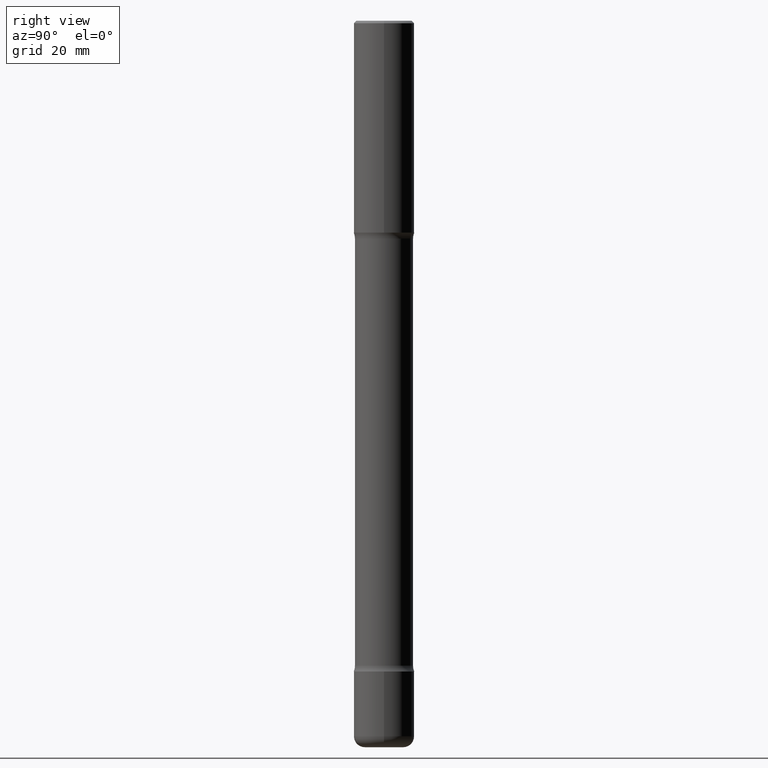
[diagram: clean part render]
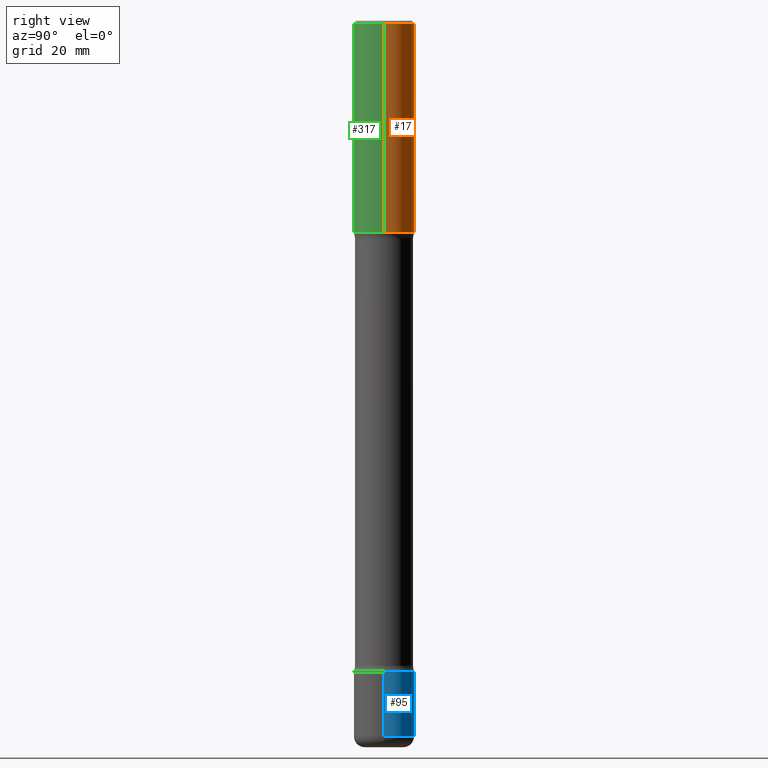
[diagram: same view with three faces highlighted in distinct colors, each labeled with its STEP entity id]
A machine part, right view with three faces highlighted in distinct colors.
Their STEP definitions:

[orange] entity #17 — the highlighted cylindrical surface (edge-blend (fillet) strip) has radius 6.35 mm, axis along (-0, 0, 1).
#17 = ADVANCED_FACE ( 'NONE', ( #40 ), #514, .T. ) ;
#23 = DIRECTION ( 'NONE',  ( -2.445468806185136597E-29, 3.491481338843145583E-15, 1.000000000000000000 ) ) ;
#33 = CARTESIAN_POINT ( 'NONE',  ( 4.279570410823991847E-29, -6.110092342975509404E-15, -1.750000000000001332 ) ) ;
#40 = FACE_OUTER_BOUND ( 'NONE', #321, .T. ) ;
#44 = CIRCLE ( 'NONE', #362, 0.2500000000000001110 ) ;
#68 = DIRECTION ( 'NONE',  ( -2.445468806185136597E-29, 3.491481338843145583E-15, 1.000000000000000000 ) ) ;
#77 = EDGE_CURVE ( 'NONE', #219, #112, #521, .T. ) ;
#88 = DIRECTION ( 'NONE',  ( -2.445468806185136877E-29, 3.491481338843145188E-15, 1.000000000000000000 ) ) ;
#91 = VECTOR ( 'NONE', #88, 39.37007874015748143 ) ;
#92 = DIRECTION ( 'NONE',  ( 1.000000000000000000, -6.982962677686267499E-15, 4.876176775795936353E-29 ) ) ;
#93 = ORIENTED_EDGE ( 'NONE', *, *, #494, .F. ) ;
#98 = CARTESIAN_POINT ( 'NONE',  ( 0.000000000000000000, 0.000000000000000000, 0.000000000000000000 ) ) ;
#102 = AXIS2_PLACEMENT_3D ( 'NONE', #98, #196, #92 ) ;
#112 = VERTEX_POINT ( 'NONE', #215 ) ;
#131 = LINE ( 'NONE', #473, #91 ) ;
#152 = DIRECTION ( 'NONE',  ( 1.000000000000000000, -6.982962677686267499E-15, 0.000000000000000000 ) ) ;
#196 = DIRECTION ( 'NONE',  ( -2.445468806185136597E-29, 3.491481338843145583E-15, 1.000000000000000000 ) ) ;
#203 = ORIENTED_EDGE ( 'NONE', *, *, #325, .T. ) ;
#215 = CARTESIAN_POINT ( 'NONE',  ( -0.2500000000000001110, 1.675911042644704563E-15, -0.02000000000000005246 ) ) ;
#219 = VERTEX_POINT ( 'NONE', #492 ) ;
#261 = ORIENTED_EDGE ( 'NONE', *, *, #77, .T. ) ;
#290 = VERTEX_POINT ( 'NONE', #448 ) ;
#291 = EDGE_CURVE ( 'NONE', #371, #112, #44, .T. ) ;
#314 = CARTESIAN_POINT ( 'NONE',  ( 0.2500000000000001110, -1.784954126219746583E-15, -0.02000000000000005246 ) ) ;
#321 = EDGE_LOOP ( 'NONE', ( #203, #261, #368, #93 ) ) ;
#325 = EDGE_CURVE ( 'NONE', #290, #219, #396, .T. ) ;
#362 = AXIS2_PLACEMENT_3D ( 'NONE', #533, #23, #152 ) ;
#368 = ORIENTED_EDGE ( 'NONE', *, *, #291, .F. ) ;
#371 = VERTEX_POINT ( 'NONE', #314 ) ;
#395 = DIRECTION ( 'NONE',  ( -2.445468806185136877E-29, 3.491481338843145188E-15, 1.000000000000000000 ) ) ;
#396 = CIRCLE ( 'NONE', #415, 0.2500000000000003331 ) ;
#414 = VECTOR ( 'NONE', #395, 39.37007874015748143 ) ;
#415 = AXIS2_PLACEMENT_3D ( 'NONE', #33, #68, #456 ) ;
#440 = CARTESIAN_POINT ( 'NONE',  ( -0.2500000000000002220, 1.776356839400252042E-15, -1.229733772563727566E-29 ) ) ;
#448 = CARTESIAN_POINT ( 'NONE',  ( 0.2500000000000003331, -7.855833012397078448E-15, -1.750000000000001332 ) ) ;
#456 = DIRECTION ( 'NONE',  ( 1.000000000000000000, -6.982962677686269077E-15, 0.000000000000000000 ) ) ;
#473 = CARTESIAN_POINT ( 'NONE',  ( 0.2500000000000002220, -1.745740669421568453E-15, 1.219044193948985209E-29 ) ) ;
#492 = CARTESIAN_POINT ( 'NONE',  ( -0.2500000000000003331, -1.313604145475932337E-15, -1.750000000000001332 ) ) ;
#494 = EDGE_CURVE ( 'NONE', #290, #371, #131, .T. ) ;
#514 = CYLINDRICAL_SURFACE ( 'NONE', #102, 0.2500000000000002220 ) ;
#521 = LINE ( 'NONE', #440, #414 ) ;
#533 = CARTESIAN_POINT ( 'NONE',  ( 4.890937612370285420E-31, -6.982962677686308865E-17, -0.02000000000000005246 ) ) ;

[blue] entity #95 — the highlighted cylindrical surface (edge-blend (fillet) strip) has radius 6.35 mm, axis along (-0, 0, 1).
#18 = CIRCLE ( 'NONE', #191, 0.2500000000000005551 ) ;
#31 = VERTEX_POINT ( 'NONE', #221 ) ;
#59 = DIRECTION ( 'NONE',  ( 1.000000000000000000, -6.982962677686267499E-15, 4.876176775795935793E-29 ) ) ;
#81 = CIRCLE ( 'NONE', #430, 0.2500000000000002776 ) ;
#86 = VERTEX_POINT ( 'NONE', #528 ) ;
#95 = ADVANCED_FACE ( 'NONE', ( #354 ), #185, .T. ) ;
#120 = EDGE_CURVE ( 'NONE', #236, #86, #18, .T. ) ;
#143 = DIRECTION ( 'NONE',  ( -2.445468806185136597E-29, 3.491481338843145583E-15, 1.000000000000000000 ) ) ;
#158 = VERTEX_POINT ( 'NONE', #392 ) ;
#161 = CARTESIAN_POINT ( 'NONE',  ( 1.314439483324511369E-28, -1.876671219628191278E-14, -5.375000000000001776 ) ) ;
#167 = DIRECTION ( 'NONE',  ( 1.000000000000000000, -6.982962677686262766E-15, 0.000000000000000000 ) ) ;
#185 = CYLINDRICAL_SURFACE ( 'NONE', #329, 0.2500000000000003886 ) ;
#191 = AXIS2_PLACEMENT_3D ( 'NONE', #334, #259, #167 ) ;
#218 = EDGE_CURVE ( 'NONE', #236, #31, #365, .T. ) ;
#221 = CARTESIAN_POINT ( 'NONE',  ( 0.2500000000000002776, -2.051245286570348262E-14, -5.375000000000001776 ) ) ;
#231 = ORIENTED_EDGE ( 'NONE', *, *, #120, .T. ) ;
#236 = VERTEX_POINT ( 'NONE', #281 ) ;
#257 = EDGE_CURVE ( 'NONE', #31, #158, #81, .T. ) ;
#259 = DIRECTION ( 'NONE',  ( -2.445468806185136597E-29, 3.491481338843145583E-15, 1.000000000000000000 ) ) ;
#281 = CARTESIAN_POINT ( 'NONE',  ( 0.2500000000000006661, -2.238039538198456243E-14, -5.910000000000001030 ) ) ;
#299 = EDGE_CURVE ( 'NONE', #86, #158, #326, .T. ) ;
#324 = DIRECTION ( 'NONE',  ( 1.000000000000000000, -6.982962677686270655E-15, 0.000000000000000000 ) ) ;
#326 = LINE ( 'NONE', #404, #504 ) ;
#329 = AXIS2_PLACEMENT_3D ( 'NONE', #357, #143, #59 ) ;
#334 = CARTESIAN_POINT ( 'NONE',  ( 1.445272064455416016E-28, -2.063465471256299260E-14, -5.910000000000001030 ) ) ;
#350 = VECTOR ( 'NONE', #376, 39.37007874015748143 ) ;
#354 = FACE_OUTER_BOUND ( 'NONE', #399, .T. ) ;
#357 = CARTESIAN_POINT ( 'NONE',  ( 0.000000000000000000, 0.000000000000000000, 0.000000000000000000 ) ) ;
#361 = DIRECTION ( 'NONE',  ( -2.445468806185136597E-29, 3.491481338843145583E-15, 1.000000000000000000 ) ) ;
#365 = LINE ( 'NONE', #412, #350 ) ;
#376 = DIRECTION ( 'NONE',  ( -2.445468806185136877E-29, 3.491481338843145188E-15, 1.000000000000000000 ) ) ;
#392 = CARTESIAN_POINT ( 'NONE',  ( -0.2500000000000002776, -1.792432661502220065E-14, -5.375000000000001776 ) ) ;
#399 = EDGE_LOOP ( 'NONE', ( #231, #445, #427, #449 ) ) ;
#404 = CARTESIAN_POINT ( 'NONE',  ( -0.2500000000000003886, 1.776356839400253226E-15, -1.229733772563728407E-29 ) ) ;
#412 = CARTESIAN_POINT ( 'NONE',  ( 0.2500000000000003886, -1.745740669421569636E-15, 1.219044193948985910E-29 ) ) ;
#427 = ORIENTED_EDGE ( 'NONE', *, *, #257, .F. ) ;
#430 = AXIS2_PLACEMENT_3D ( 'NONE', #161, #361, #324 ) ;
#445 = ORIENTED_EDGE ( 'NONE', *, *, #299, .T. ) ;
#449 = ORIENTED_EDGE ( 'NONE', *, *, #218, .F. ) ;
#504 = VECTOR ( 'NONE', #507, 39.37007874015748143 ) ;
#507 = DIRECTION ( 'NONE',  ( -2.445468806185136877E-29, 3.491481338843145188E-15, 1.000000000000000000 ) ) ;
#528 = CARTESIAN_POINT ( 'NONE',  ( -0.2500000000000006661, -1.885829787316274213E-14, -5.910000000000001030 ) ) ;

[green] entity #317 — the highlighted cylindrical surface (edge-blend (fillet) strip) has radius 6.35 mm, axis along (-0, 0, 1).
#66 = FACE_OUTER_BOUND ( 'NONE', #451, .T. ) ;
#67 = AXIS2_PLACEMENT_3D ( 'NONE', #269, #172, #471 ) ;
#75 = ORIENTED_EDGE ( 'NONE', *, *, #77, .F. ) ;
#77 = EDGE_CURVE ( 'NONE', #219, #112, #521, .T. ) ;
#88 = DIRECTION ( 'NONE',  ( -2.445468806185136877E-29, 3.491481338843145188E-15, 1.000000000000000000 ) ) ;
#91 = VECTOR ( 'NONE', #88, 39.37007874015748143 ) ;
#112 = VERTEX_POINT ( 'NONE', #215 ) ;
#114 = ORIENTED_EDGE ( 'NONE', *, *, #443, .F. ) ;
#119 = CIRCLE ( 'NONE', #67, 0.2500000000000001110 ) ;
#131 = LINE ( 'NONE', #473, #91 ) ;
#140 = ORIENTED_EDGE ( 'NONE', *, *, #494, .T. ) ;
#172 = DIRECTION ( 'NONE',  ( -2.445468806185136597E-29, 3.491481338843145583E-15, 1.000000000000000000 ) ) ;
#173 = DIRECTION ( 'NONE',  ( -2.445468806185136597E-29, 3.491481338843145583E-15, 1.000000000000000000 ) ) ;
#210 = DIRECTION ( 'NONE',  ( 1.000000000000000000, -6.982962677686269077E-15, 0.000000000000000000 ) ) ;
#215 = CARTESIAN_POINT ( 'NONE',  ( -0.2500000000000001110, 1.675911042644704563E-15, -0.02000000000000005246 ) ) ;
#219 = VERTEX_POINT ( 'NONE', #492 ) ;
#244 = DIRECTION ( 'NONE',  ( -2.445468806185136597E-29, 3.491481338843145583E-15, 1.000000000000000000 ) ) ;
#268 = AXIS2_PLACEMENT_3D ( 'NONE', #495, #244, #288 ) ;
#269 = CARTESIAN_POINT ( 'NONE',  ( 4.890937612370285420E-31, -6.982962677686308865E-17, -0.02000000000000005246 ) ) ;
#288 = DIRECTION ( 'NONE',  ( 1.000000000000000000, -6.982962677686267499E-15, 4.876176775795936353E-29 ) ) ;
#290 = VERTEX_POINT ( 'NONE', #448 ) ;
#313 = AXIS2_PLACEMENT_3D ( 'NONE', #480, #173, #210 ) ;
#314 = CARTESIAN_POINT ( 'NONE',  ( 0.2500000000000001110, -1.784954126219746583E-15, -0.02000000000000005246 ) ) ;
#317 = ADVANCED_FACE ( 'NONE', ( #66 ), #538, .T. ) ;
#371 = VERTEX_POINT ( 'NONE', #314 ) ;
#395 = DIRECTION ( 'NONE',  ( -2.445468806185136877E-29, 3.491481338843145188E-15, 1.000000000000000000 ) ) ;
#414 = VECTOR ( 'NONE', #395, 39.37007874015748143 ) ;
#417 = EDGE_CURVE ( 'NONE', #219, #290, #548, .T. ) ;
#440 = CARTESIAN_POINT ( 'NONE',  ( -0.2500000000000002220, 1.776356839400252042E-15, -1.229733772563727566E-29 ) ) ;
#443 = EDGE_CURVE ( 'NONE', #112, #371, #119, .T. ) ;
#448 = CARTESIAN_POINT ( 'NONE',  ( 0.2500000000000003331, -7.855833012397078448E-15, -1.750000000000001332 ) ) ;
#451 = EDGE_LOOP ( 'NONE', ( #75, #465, #140, #114 ) ) ;
#465 = ORIENTED_EDGE ( 'NONE', *, *, #417, .T. ) ;
#471 = DIRECTION ( 'NONE',  ( 1.000000000000000000, -6.982962677686267499E-15, 0.000000000000000000 ) ) ;
#473 = CARTESIAN_POINT ( 'NONE',  ( 0.2500000000000002220, -1.745740669421568453E-15, 1.219044193948985209E-29 ) ) ;
#480 = CARTESIAN_POINT ( 'NONE',  ( 4.279570410823991847E-29, -6.110092342975509404E-15, -1.750000000000001332 ) ) ;
#492 = CARTESIAN_POINT ( 'NONE',  ( -0.2500000000000003331, -1.313604145475932337E-15, -1.750000000000001332 ) ) ;
#494 = EDGE_CURVE ( 'NONE', #290, #371, #131, .T. ) ;
#495 = CARTESIAN_POINT ( 'NONE',  ( 0.000000000000000000, 0.000000000000000000, 0.000000000000000000 ) ) ;
#521 = LINE ( 'NONE', #440, #414 ) ;
#538 = CYLINDRICAL_SURFACE ( 'NONE', #268, 0.2500000000000002220 ) ;
#548 = CIRCLE ( 'NONE', #313, 0.2500000000000003331 ) ;